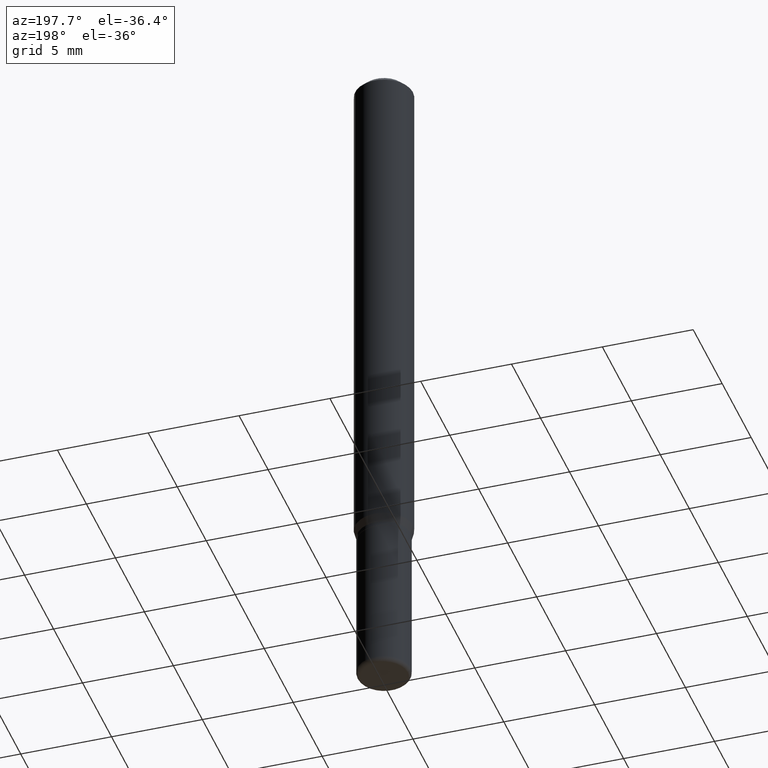
[diagram: clean part render]
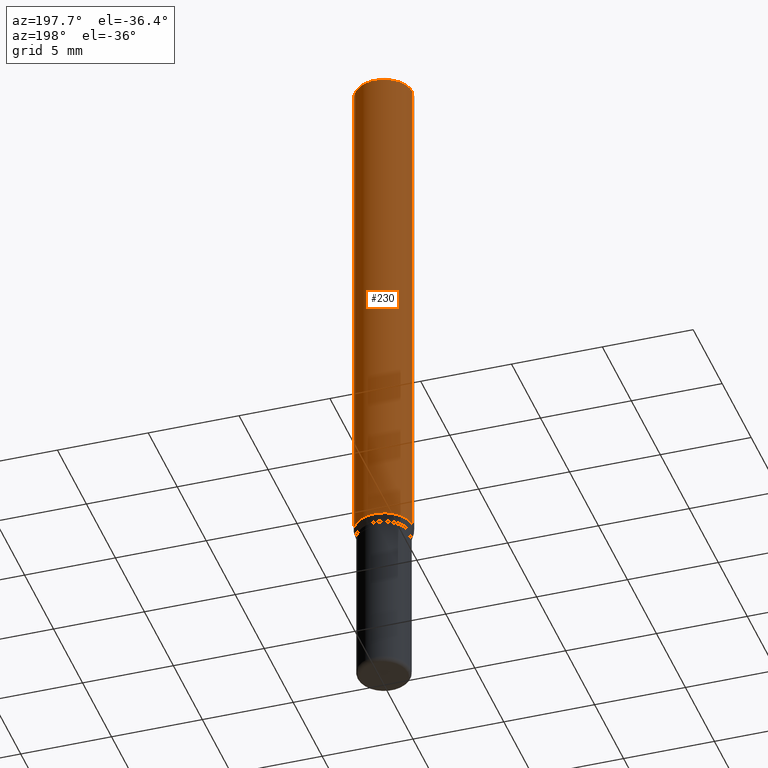
[diagram: same view with one face highlighted and labeled with its STEP entity id]
A machine part, auxiliary view. The second image highlights one B-rep face of the part: STEP entity #230.
In plain terms, the highlighted cylindrical surface (edge-blend (fillet) strip) has radius 1.5875 mm, axis along (-0, 0, 1).
Its self-contained STEP definition (entity closure, byte-faithful):
#5 = CARTESIAN_POINT ( 'NONE',  ( 2.754428713916942619E-29, -3.932594204224195830E-15, -1.126339745962155581 ) ) ;
#7 = DIRECTION ( 'NONE',  ( -2.445468806185136877E-29, 3.491481338843145188E-15, 1.000000000000000000 ) ) ;
#19 = ORIENTED_EDGE ( 'NONE', *, *, #238, .F. ) ;
#29 = VECTOR ( 'NONE', #129, 39.37007874015748143 ) ;
#40 = DIRECTION ( 'NONE',  ( -2.445468806185136597E-29, 3.491481338843145583E-15, 1.000000000000000000 ) ) ;
#62 = DIRECTION ( 'NONE',  ( 1.000000000000000000, -6.982962677686266711E-15, 4.876176775795935793E-29 ) ) ;
#67 = CYLINDRICAL_SURFACE ( 'NONE', #137, 0.06250000000000000000 ) ;
#73 = DIRECTION ( 'NONE',  ( 1.000000000000000000, -6.982962677686266711E-15, 0.000000000000000000 ) ) ;
#90 = CARTESIAN_POINT ( 'NONE',  ( -0.06250000000000000000, 4.440892098500626162E-16, -3.074334431409316114E-30 ) ) ;
#126 = LINE ( 'NONE', #157, #29 ) ;
#127 = VERTEX_POINT ( 'NONE', #440 ) ;
#129 = DIRECTION ( 'NONE',  ( -2.445468806185136877E-29, 3.491481338843145188E-15, 1.000000000000000000 ) ) ;
#134 = EDGE_CURVE ( 'NONE', #127, #438, #126, .T. ) ;
#137 = AXIS2_PLACEMENT_3D ( 'NONE', #266, #424, #62 ) ;
#143 = EDGE_CURVE ( 'NONE', #127, #359, #383, .T. ) ;
#157 = CARTESIAN_POINT ( 'NONE',  ( 0.06250000000000000000, -4.364351673553916694E-16, 3.047610484872459871E-30 ) ) ;
#170 = CARTESIAN_POINT ( 'NONE',  ( -0.06250000000000000000, -3.488504994374132819E-15, -1.126339745962155581 ) ) ;
#199 = AXIS2_PLACEMENT_3D ( 'NONE', #310, #430, #73 ) ;
#218 = ORIENTED_EDGE ( 'NONE', *, *, #143, .T. ) ;
#230 = ADVANCED_FACE ( 'NONE', ( #345 ), #67, .T. ) ;
#238 = EDGE_CURVE ( 'NONE', #438, #412, #329, .T. ) ;
#266 = CARTESIAN_POINT ( 'NONE',  ( 0.000000000000000000, 0.000000000000000000, 0.000000000000000000 ) ) ;
#310 = CARTESIAN_POINT ( 'NONE',  ( 3.668203209277632395E-31, -5.237222008264614861E-17, -0.01499999999999970281 ) ) ;
#317 = EDGE_LOOP ( 'NONE', ( #218, #471, #19, #387 ) ) ;
#329 = CIRCLE ( 'NONE', #199, 0.06250000000000000000 ) ;
#334 = CARTESIAN_POINT ( 'NONE',  ( -0.06250000000000000000, -1.548394002303358444E-15, -0.01499999999999970281 ) ) ;
#345 = FACE_OUTER_BOUND ( 'NONE', #317, .T. ) ;
#353 = EDGE_CURVE ( 'NONE', #359, #412, #448, .T. ) ;
#359 = VERTEX_POINT ( 'NONE', #170 ) ;
#383 = CIRCLE ( 'NONE', #447, 0.06250000000000000000 ) ;
#387 = ORIENTED_EDGE ( 'NONE', *, *, #134, .F. ) ;
#391 = DIRECTION ( 'NONE',  ( 1.000000000000000000, -6.982962677686270655E-15, 0.000000000000000000 ) ) ;
#412 = VERTEX_POINT ( 'NONE', #334 ) ;
#424 = DIRECTION ( 'NONE',  ( -2.445468806185136597E-29, 3.491481338843145583E-15, 1.000000000000000000 ) ) ;
#430 = DIRECTION ( 'NONE',  ( -2.445468806185136597E-29, 3.491481338843145583E-15, 1.000000000000000000 ) ) ;
#438 = VERTEX_POINT ( 'NONE', #445 ) ;
#440 = CARTESIAN_POINT ( 'NONE',  ( 0.06250000000000000000, -4.369029371579586711E-15, -1.126339745962155581 ) ) ;
#445 = CARTESIAN_POINT ( 'NONE',  ( 0.06250000000000000000, -4.888073874380378612E-16, -0.01499999999999970281 ) ) ;
#447 = AXIS2_PLACEMENT_3D ( 'NONE', #5, #40, #391 ) ;
#448 = LINE ( 'NONE', #90, #504 ) ;
#471 = ORIENTED_EDGE ( 'NONE', *, *, #353, .T. ) ;
#504 = VECTOR ( 'NONE', #7, 39.37007874015748143 ) ;